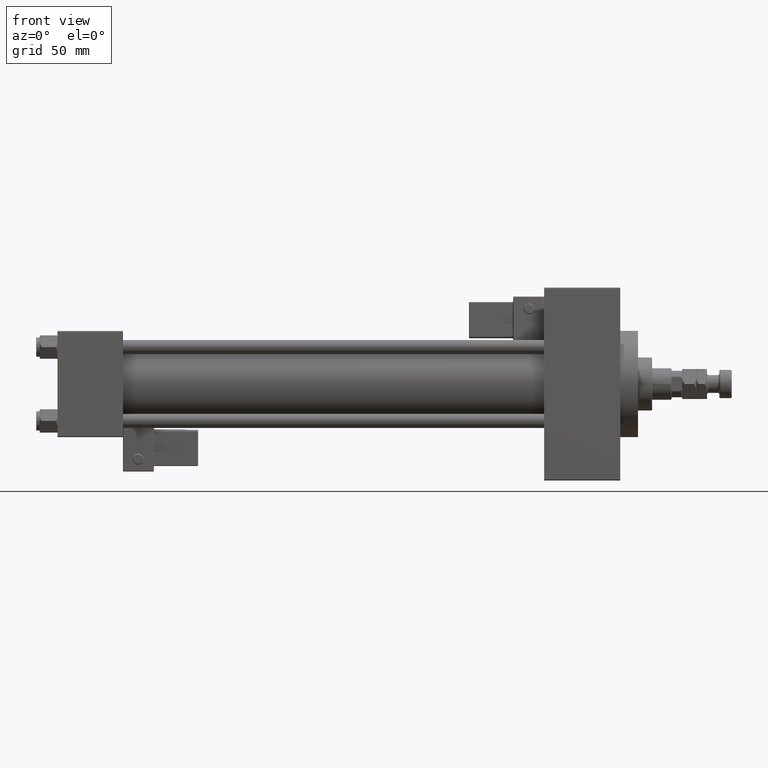
[diagram: clean part render]
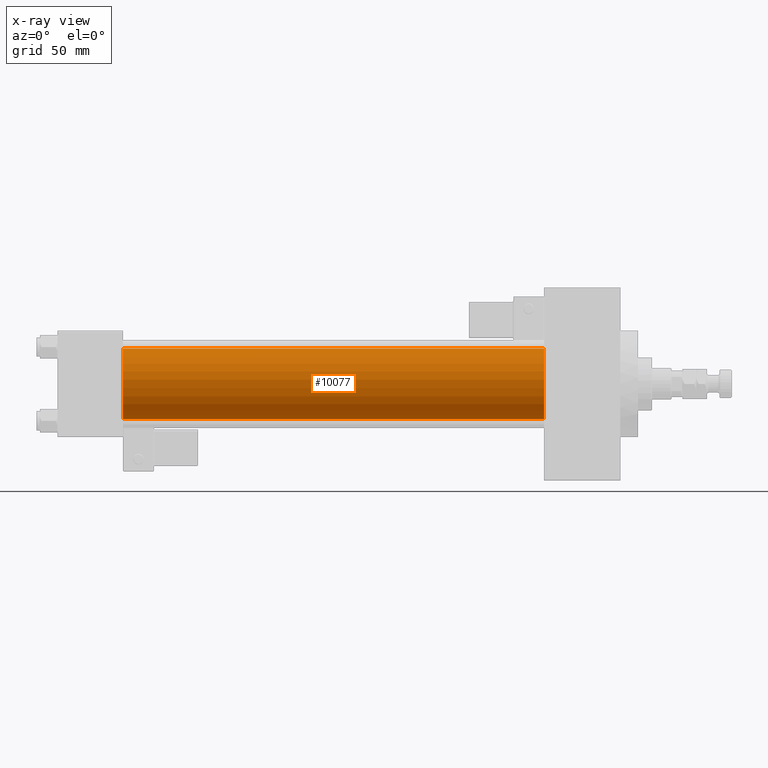
[diagram: x-ray — body ghosted, one internal face saturated and labeled with its STEP entity id]
A machine part, front view, then the same camera in x-ray: the body is ghosted and one INTERNAL B-rep face — a face not visible from any outside direction — is saturated and labeled: STEP entity #10077.
In plain terms, the highlighted cylindrical surface (edge-blend (fillet) strip) has radius 20 mm, axis along (-1, -0, -0).
Its self-contained STEP definition (entity closure, byte-faithful):
#186 = DIRECTION ( 'NONE',  ( -1.000000000000000000, -0.000000000000000000, -0.000000000000000000 ) ) ;
#3794 = DIRECTION ( 'NONE',  ( 0.000000000000000000, 0.000000000000000000, -1.000000000000000000 ) ) ;
#4914 = VERTEX_POINT ( 'NONE', #50269 ) ;
#5828 = ORIENTED_EDGE ( 'NONE', *, *, #47098, .T. ) ;
#7590 = CYLINDRICAL_SURFACE ( 'NONE', #20011, 20.00000000000000000 ) ;
#7846 = CARTESIAN_POINT ( 'NONE',  ( 37.00000000000000000, -2.602085213965210642E-15, 0.000000000000000000 ) ) ;
#9447 = EDGE_CURVE ( 'NONE', #21295, #33812, #37477, .T. ) ;
#10077 = ADVANCED_FACE ( 'NONE', ( #11648 ), #7590, .F. ) ;
#10206 = CARTESIAN_POINT ( 'NONE',  ( 37.00000000000000000, -2.602085213965210642E-15, 20.00000000000000000 ) ) ;
#11648 = FACE_OUTER_BOUND ( 'NONE', #36890, .T. ) ;
#12040 = EDGE_CURVE ( 'NONE', #21295, #14773, #25312, .T. ) ;
#13135 = LINE ( 'NONE', #29603, #25049 ) ;
#14773 = VERTEX_POINT ( 'NONE', #35408 ) ;
#16416 = CARTESIAN_POINT ( 'NONE',  ( 274.9999999999999432, -2.602085213965210642E-15, 20.00000000000000000 ) ) ;
#20003 = DIRECTION ( 'NONE',  ( 0.000000000000000000, 0.000000000000000000, 1.000000000000000000 ) ) ;
#20011 = AXIS2_PLACEMENT_3D ( 'NONE', #48882, #52918, #20003 ) ;
#21295 = VERTEX_POINT ( 'NONE', #39898 ) ;
#21630 = DIRECTION ( 'NONE',  ( 1.000000000000000000, 0.000000000000000000, 0.000000000000000000 ) ) ;
#24806 = DIRECTION ( 'NONE',  ( -1.000000000000000000, -0.000000000000000000, -0.000000000000000000 ) ) ;
#25049 = VECTOR ( 'NONE', #186, 1000.000000000000000 ) ;
#25312 = CIRCLE ( 'NONE', #51126, 20.00000000000000000 ) ;
#25703 = DIRECTION ( 'NONE',  ( 0.000000000000000000, 0.000000000000000000, -1.000000000000000000 ) ) ;
#28792 = ORIENTED_EDGE ( 'NONE', *, *, #9447, .F. ) ;
#29603 = CARTESIAN_POINT ( 'NONE',  ( 274.9999999999999432, -1.527916156705042519E-16, -20.00000000000000000 ) ) ;
#29746 = CARTESIAN_POINT ( 'NONE',  ( 274.9999999999999432, -2.602085213965210642E-15, 0.000000000000000000 ) ) ;
#32526 = ORIENTED_EDGE ( 'NONE', *, *, #42031, .F. ) ;
#33812 = VERTEX_POINT ( 'NONE', #10206 ) ;
#35408 = CARTESIAN_POINT ( 'NONE',  ( 274.9999999999999432, -1.527916156705042519E-16, -20.00000000000000000 ) ) ;
#36890 = EDGE_LOOP ( 'NONE', ( #46873, #5828, #32526, #28792 ) ) ;
#37046 = AXIS2_PLACEMENT_3D ( 'NONE', #7846, #40776, #3794 ) ;
#37477 = LINE ( 'NONE', #16416, #48455 ) ;
#39898 = CARTESIAN_POINT ( 'NONE',  ( 274.9999999999999432, -2.602085213965210642E-15, 20.00000000000000000 ) ) ;
#40776 = DIRECTION ( 'NONE',  ( 1.000000000000000000, 0.000000000000000000, 0.000000000000000000 ) ) ;
#41370 = CIRCLE ( 'NONE', #37046, 20.00000000000000000 ) ;
#42031 = EDGE_CURVE ( 'NONE', #33812, #4914, #41370, .T. ) ;
#46873 = ORIENTED_EDGE ( 'NONE', *, *, #12040, .T. ) ;
#47098 = EDGE_CURVE ( 'NONE', #14773, #4914, #13135, .T. ) ;
#48455 = VECTOR ( 'NONE', #24806, 1000.000000000000000 ) ;
#48882 = CARTESIAN_POINT ( 'NONE',  ( 274.9999999999999432, -2.602085213965210642E-15, 0.000000000000000000 ) ) ;
#50269 = CARTESIAN_POINT ( 'NONE',  ( 37.00000000000000000, -1.527916156705042519E-16, -20.00000000000000000 ) ) ;
#51126 = AXIS2_PLACEMENT_3D ( 'NONE', #29746, #21630, #25703 ) ;
#52918 = DIRECTION ( 'NONE',  ( -1.000000000000000000, -0.000000000000000000, -0.000000000000000000 ) ) ;